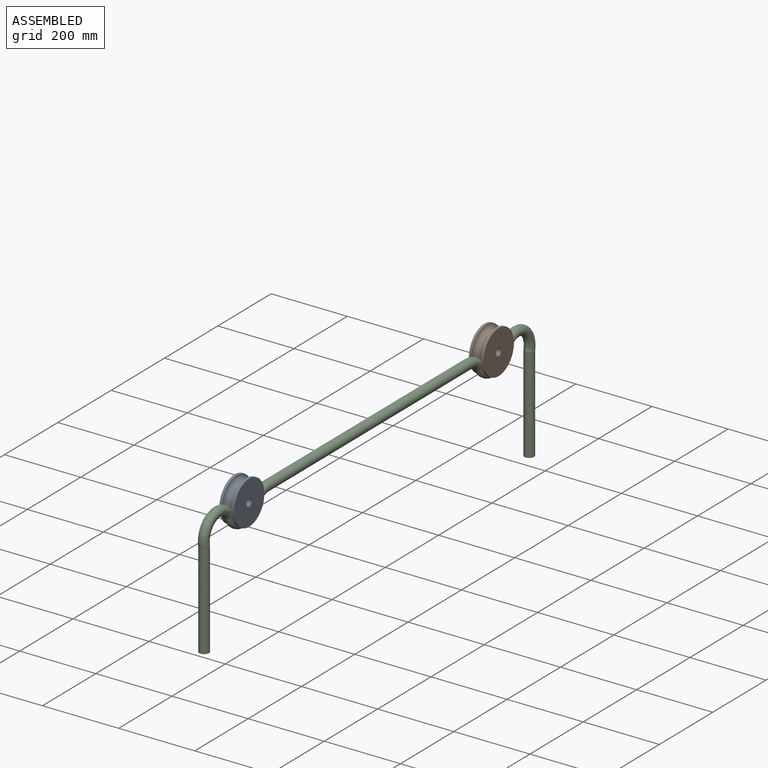
[diagram: assembled view]
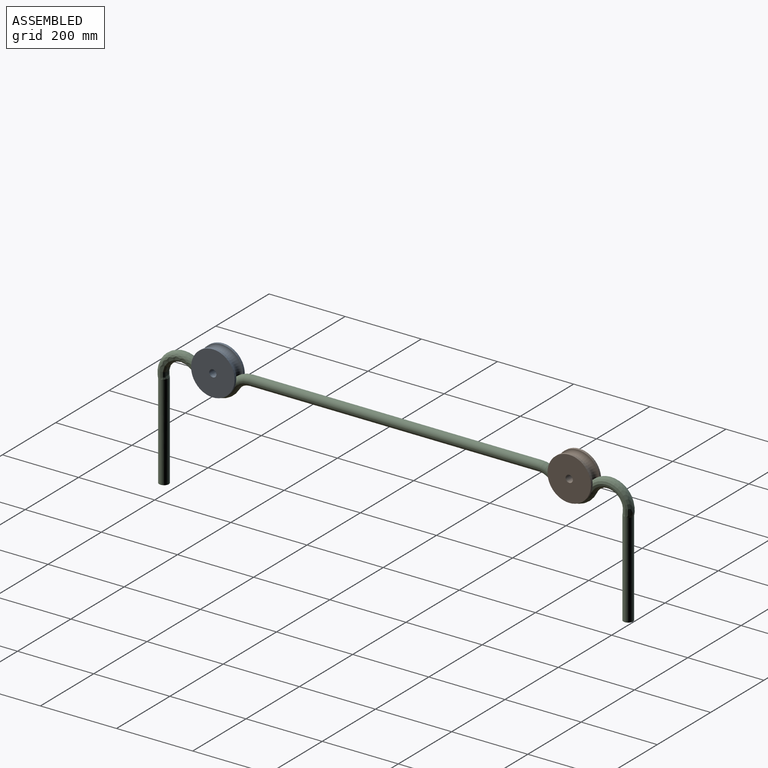
[diagram: assembled view, second angle]
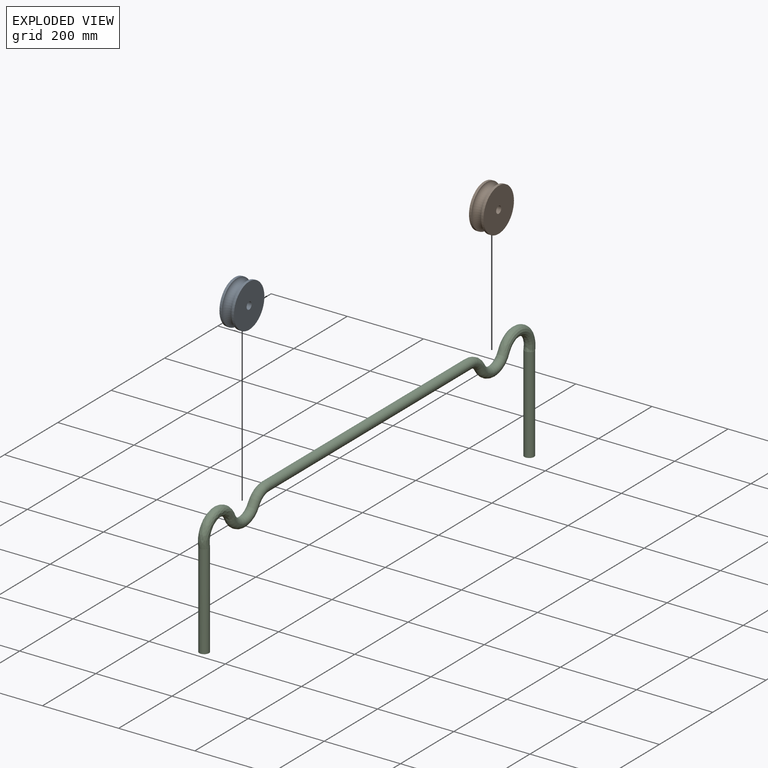
[diagram: exploded view]
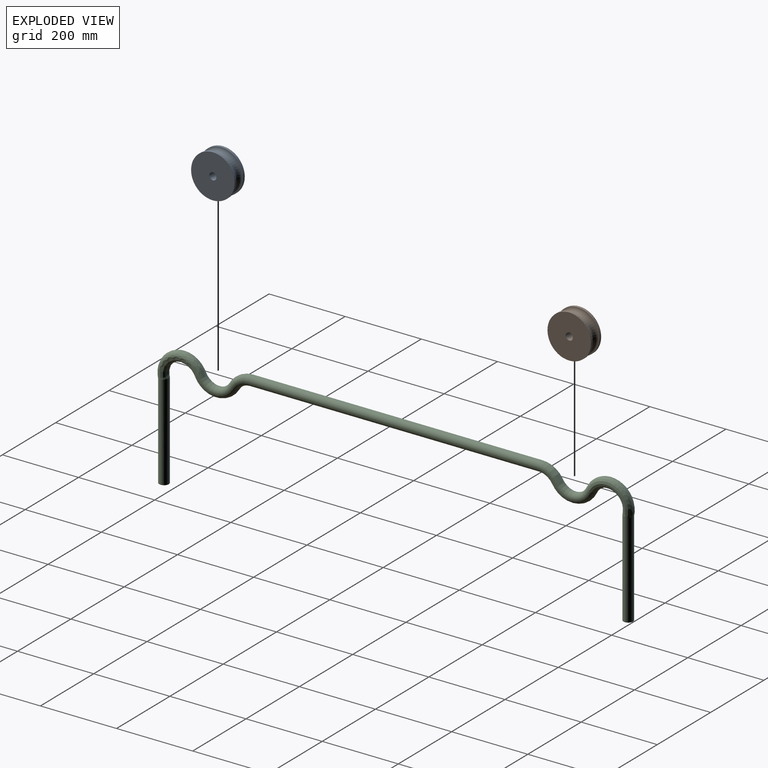
[diagram: exploded view, second angle]
ASSEMBLY  parts=3 mates=2
PART A: 6 faces, bbox 143.2x38.1x143.2 mm
  f0: cylinder r=57.15mm len=114.3mm, axis (0,1,0), area 2280.2mm2, adj f3,f5
  f1: cylinder r=57.15mm len=114.3mm, axis (0,1,0), area 2280.2mm2, adj f4,f5
  f2: cylinder r=9.53mm len=38.1mm, axis (0,1,0), area 2280.2mm2, adj f3,f4
  f3: plane 114.3x114.3mm, normal (0,-1,0), area 9975.8mm2, adj f0,f2
  f4: plane 114.3x114.3mm, normal (0,1,0), area 9975.8mm2, adj f1,f2
  f5: torus R=57.15mm, axis (0,-1,0), area 12300mm2, adj f0,f1
PART B: same geometry as A
PART C: 20 faces, bbox 50.8x1247.9x326.2 mm
  f0: cylinder r=11.11mm len=251.41mm, axis (0,0,-1), area 17459mm2, adj f7,f9
  f1: bspline ~118.31x78.85mm, area 10490.8mm2, adj f2,f8
  f2: torus R=50.8mm, axis (-1,0,0), area 7761.5mm2, adj f1,f3
  f3: torus R=50.8mm, axis (1,0,0), area 3714.4mm2, adj f2,f4
  f4: cylinder r=11.11mm len=759.99mm, axis (0,-1,0), area 53064.1mm2, adj f3,f5
  f5: torus R=50.8mm, axis (1,0,0), area 3714.4mm2, adj f4,f6
  f6: torus R=50.8mm, axis (-1,0,0), area 7761.5mm2, adj f5,f7
  f7: bspline ~118.31x78.85mm, area 10490.8mm2, adj f0,f6
  f8: cylinder r=11.11mm len=251.41mm, axis (0,0,1), area 17459mm2, adj f1,f10
  f9: plane 25.4x25.4mm, normal (0,0,-1), area 118.8mm2, adj f0,f11
  f10: plane 25.4x25.4mm, normal (0,0,-1), area 118.8mm2, adj f8,f19
  f11: cylinder r=12.7mm len=251.61mm, axis (0,0,-1), area 19953.5mm2, adj f9,f18
  f12: torus R=50.8mm, axis (-1,0,0), area 8870.3mm2, adj f13,f17
  f13: torus R=50.8mm, axis (1,0,0), area 4245mm2, adj f12,f14
  f14: cylinder r=12.7mm len=759.99mm, axis (0,-1,0), area 60644.7mm2, adj f13,f15
  f15: torus R=50.8mm, axis (1,0,0), area 4245mm2, adj f14,f16
  f16: torus R=50.8mm, axis (-1,0,0), area 8870.3mm2, adj f15,f18
  f17: bspline ~121.35x81.04mm, area 11989mm2, adj f12,f19
  f18: bspline ~121.35x81.04mm, area 11989mm2, adj f11,f16
  f19: cylinder r=12.7mm len=251.61mm, axis (0,0,1), area 19953.5mm2, adj f10,f17
PLACE A rot(axis=(0.58,-0.58,0.58),120deg) t=(-48.77,-467.98,0)mm
PLACE B rot(axis=(0.58,-0.58,0.58),120deg) t=(-48.77,467.98,0)mm
PLACE C t=(-48.77,0,0)mm
MATE revolute A.f2 <-> C.f6  axis (-1,0,0) through (-48.77,-467.98,0)mm
MATE revolute B.f2 <-> C.f2  axis (-1,0,0) through (-48.77,467.98,0)mm
